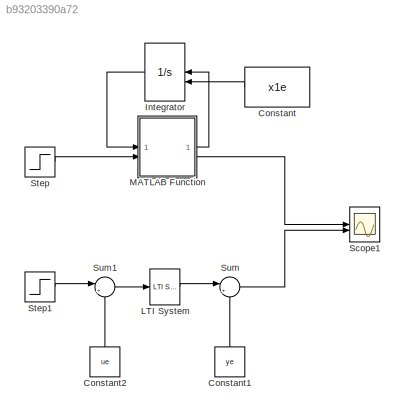
MODEL slx_b93203390a72
KIND model
CONFIG AbsTol = auto
CONFIG EnableMultiTasking = off
CONFIG FixedStep = auto
CONFIG MaxStep = auto
CONFIG MinStep = auto
CONFIG RelTol = 1e-3
CONFIG SampleTimeConstraint = Unconstrained
CONFIG SolverName = VariableStepAuto
CONFIG StartTime = 0.0
CONFIG StopTime = 2000
BLOCK [Constant] Constant
  Value = x1e
BLOCK [Constant] Constant1
  NameLocation = right
  Value = ye
BLOCK [Constant] Constant2
  NameLocation = right
  Value = ue
BLOCK [Integrator] Integrator
  InitialConditionSource = external
BLOCK [Reference] LTI System  REF=cstblocks/LTI System
  SourceBlock = cstblocks/LTI System
  SourceType = LTI Block
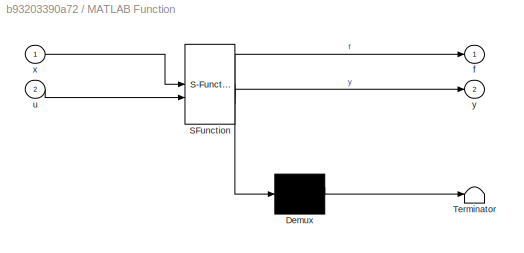
BLOCK [SubSystem] MATLAB Function
  ErrorFcn = Stateflow.Translate.translate
  PermitHierarchicalResolution = ExplicitOnly
  SFBlockType = MATLAB Function
  TreatAsAtomicUnit = on
BLOCK [Demux] MATLAB Function/ Demux 
  Outputs = 1
BLOCK [S-Function] MATLAB Function/ SFunction 
  EnableBusSupport = on
  FunctionName = sf_sfun
  PortCounts = [2 3]
  SFcnIsStateOwnerBlock = off
  SFunctionDeploymentMode = off
  Tag = Stateflow S-Function 2
BLOCK [Terminator] MATLAB Function/ Terminator 
BLOCK [Outport] MATLAB Function/f
BLOCK [Inport] MATLAB Function/u
  Port = 2
BLOCK [Inport] MATLAB Function/x
BLOCK [Outport] MATLAB Function/y
  Port = 2
BLOCK [Scope] Scope1
  Floating = off
  NumInputPorts = 2
  ScopeSpecificationString = Simulink.scopes.TimeScopeBlockCfg('CurrentConfiguration', extmgr.ConfigurationSet(extmgr.Configuration('Core','General UI',true,'FigureColor',[1 1 1]),extmgr.Configuration('Core','Source UI',true),extmgr.Configuration('Sources','WiredSimulink',true,'DataLoggingVariableName','ScopeData1'),extmgr.Configuration('Visuals','Time Domain',true,'SerializedDisplays',{struct('MinYLimReal','0.36223','MaxYLim...<+4219ch>
BLOCK [Step] Step
  After = 1.1*ue
  Before = ue
  SampleTime = 0
BLOCK [Step] Step1
  After = 1.1*ue
  Before = ue
  SampleTime = 0
BLOCK [Sum] Sum
  Inputs = |++
BLOCK [Sum] Sum1
  Inputs = |+-
LINE Constant1:1 -> Sum:2
LINE Constant2:1 -> Sum1:2
LINE Constant:1 -> Integrator:2
LINE Integrator:1 -> MATLAB Function:1
LINE LTI System:1 -> Sum:1
LINE MATLAB Function:1 -> Integrator:1
LINE MATLAB Function:2 -> Scope1:1
LINE Step1:1 -> Sum1:1
LINE Step:1 -> MATLAB Function:2
LINE Sum1:1 -> LTI System:1
LINE Sum:1 -> Scope1:2
CHART MATLAB Function states=1 transitions=1
  STATE_LABEL 'eML_blk_kernel()'
  STATE_LABEL 'SCRIPT:\nfunction [f,y] = fcn(x,u)\n\nQi = 8 / (1000*60);\nd = 0.01065;\nl1 = 0.1;\nl2 = 0.4;\nL = 0.9;\nAo = pi * (d/2)^2;\ng = 9.8;\n\nf = (Qi - Ao*u*sqrt(2*g*x)) / (l1 + (x/L)*(l2-l1))^2;\n\ny = x;\n'
CHART  states=0 transitions=0
